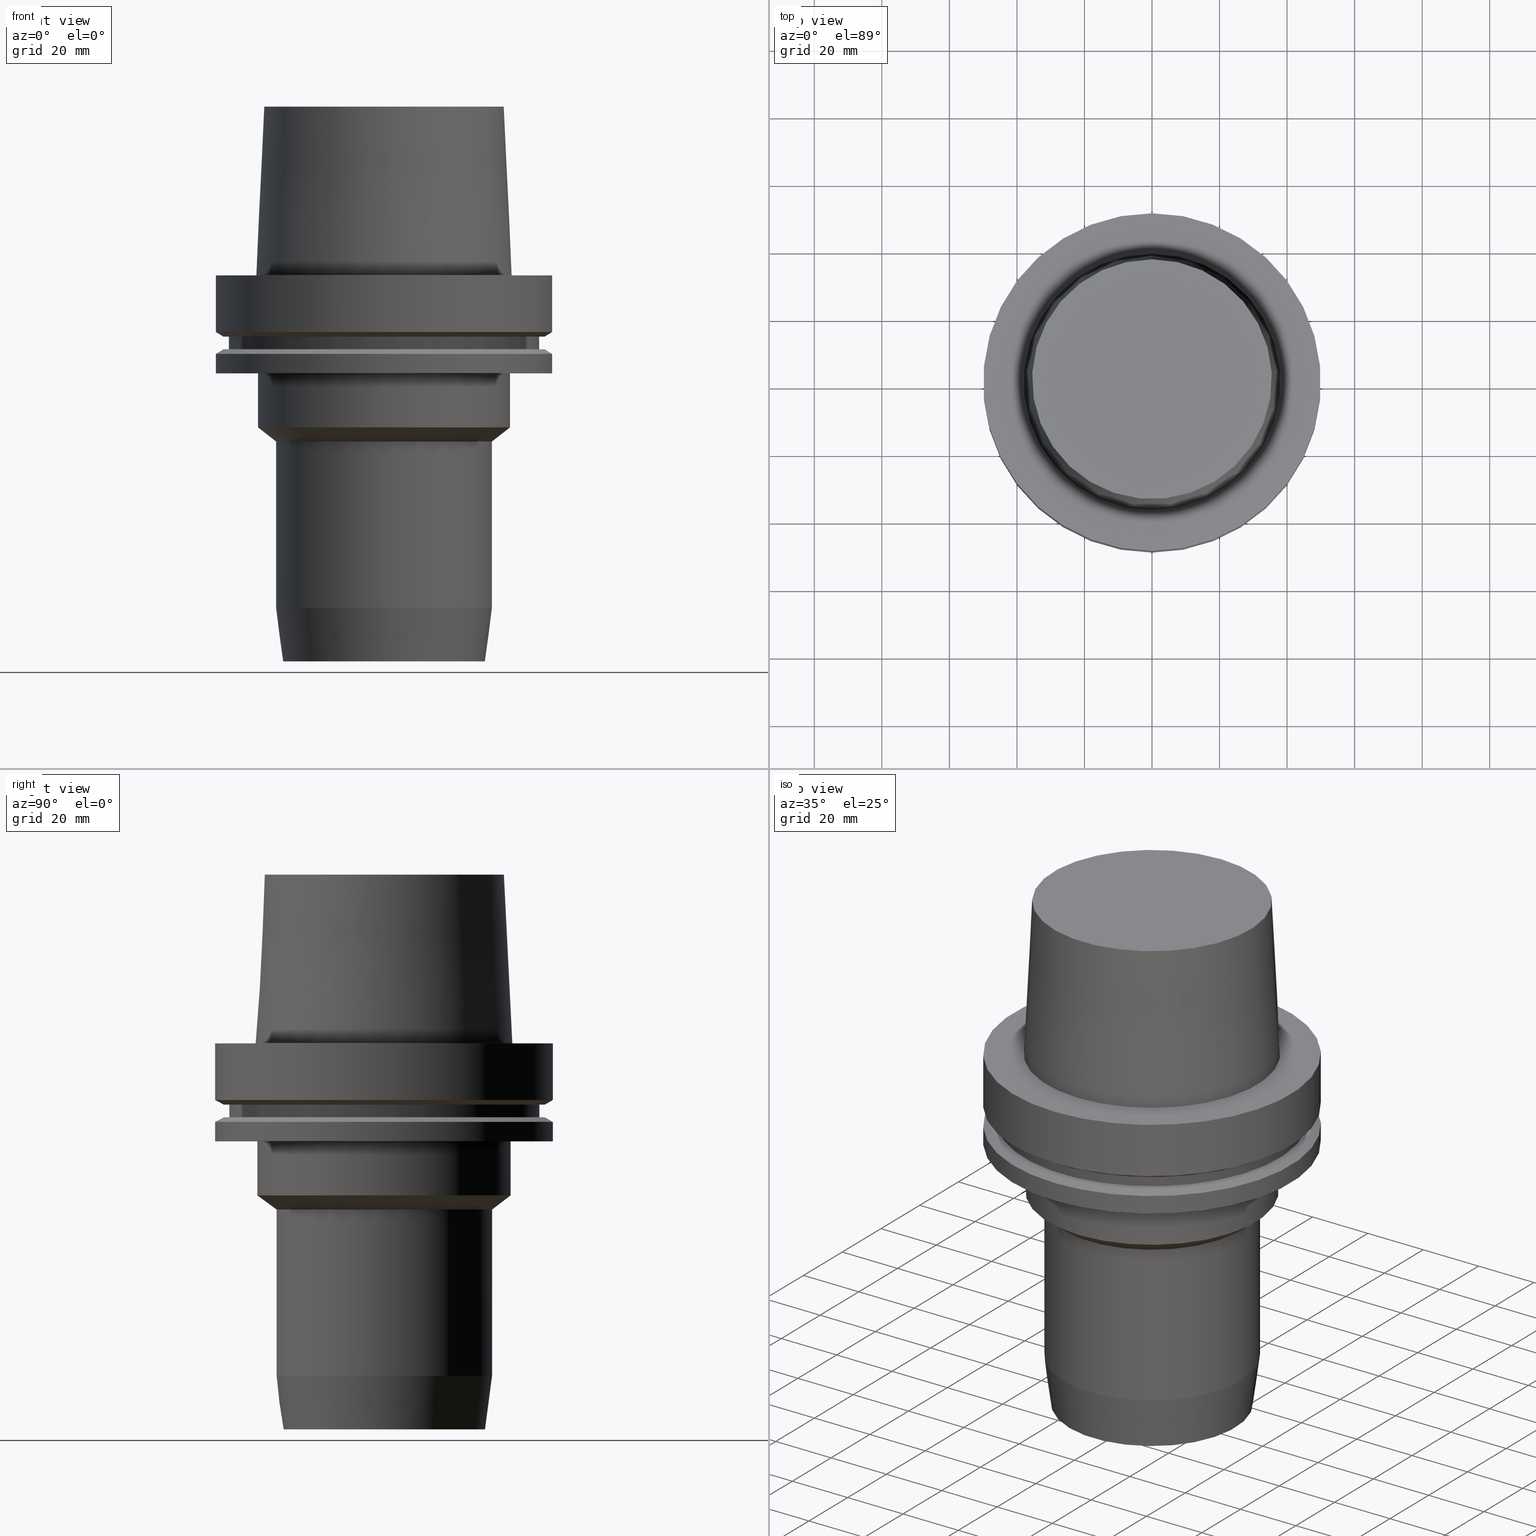
[diagram: canonical four-view strip — front | top / right | iso, engineering-drawing reading convention]
A machine part, canonical four-view strip (front | top / right | iso — engineering-drawing reading convention). The complete STEP part file that produces these views, byte-faithful:
ISO-10303-21;
HEADER;
FILE_DESCRIPTION((''),'1');
FILE_NAME('V:/90_\X2\53D65F9730C730FC30BF\X0\/00_\X2\6DE18DEF30C730FC30BF\X0\/ALL/HSK-BKUS\X2\52A05DE556F3\X0\_201801/HSK-A100-HDC/HSK-A100-HDC1.250-4.5.stp','2018-02-01T05:37:27',(''),(''),'Spatial Interop R21 SP3','Kubotek KeyCreator 2011 V10.0.2 (22737)',' ');
FILE_SCHEMA(('automotive_design'));
ENDSEC;
DATA;
#1=MECHANICAL_DESIGN_GEOMETRIC_PRESENTATION_REPRESENTATION(' ',(#10,#11,#12,#13,#14,#15,#16,#17,#18,#19,#20,#21,#22,#23,#24,#25,#26,#27,#28,#29,#30,#31,#32,#33,#34,#35,#36,#37,#38,#39,#40,#41),#6);
#2=PRODUCT_DEFINITION_CONTEXT('',#42,'design');
#3=APPLICATION_PROTOCOL_DEFINITION('INTERNATIONAL STANDARD','automotive_design',1994,#42);
#4=PRODUCT_CATEGORY_RELATIONSHIP('NONE','NONE',#43,#44);
#5=SHAPE_DEFINITION_REPRESENTATION(#45,#46);
#6= (GEOMETRIC_REPRESENTATION_CONTEXT(3)GLOBAL_UNCERTAINTY_ASSIGNED_CONTEXT((#49))GLOBAL_UNIT_ASSIGNED_CONTEXT((#51,#52,#53))REPRESENTATION_CONTEXT('NONE','WORKSPACE'));
#10=STYLED_ITEM('',(#55,#56),#57);
#11=STYLED_ITEM('',(#58,#59),#60);
#12=STYLED_ITEM('',(#61,#62),#63);
#13=STYLED_ITEM('',(#64,#65),#66);
#14=STYLED_ITEM('',(#67,#68),#69);
#15=STYLED_ITEM('',(#70),#71);
#16=STYLED_ITEM('',(#72,#73),#74);
#17=STYLED_ITEM('',(#75,#76),#77);
#18=STYLED_ITEM('',(#78),#79);
#19=STYLED_ITEM('',(#80),#81);
#20=STYLED_ITEM('',(#82),#83);
#21=STYLED_ITEM('',(#84,#85),#86);
#22=STYLED_ITEM('',(#87,#88),#89);
#23=STYLED_ITEM('',(#90,#91),#92);
#24=STYLED_ITEM('',(#93,#94),#95);
#25=STYLED_ITEM('',(#96,#97),#98);
#26=STYLED_ITEM('',(#99),#100);
#27=STYLED_ITEM('',(#101),#102);
#28=STYLED_ITEM('',(#103),#104);
#29=STYLED_ITEM('',(#105),#106);
#30=STYLED_ITEM('',(#107),#108);
#31=STYLED_ITEM('',(#109,#110),#111);
#32=STYLED_ITEM('',(#112),#113);
#33=STYLED_ITEM('',(#114),#115);
#34=STYLED_ITEM('',(#116,#117),#118);
#35=STYLED_ITEM('',(#119,#120),#121);
#36=STYLED_ITEM('',(#122,#123),#124);
#37=STYLED_ITEM('',(#125),#126);
#38=STYLED_ITEM('',(#127),#128);
#39=STYLED_ITEM('',(#129),#130);
#40=STYLED_ITEM('',(#131),#132);
#41=STYLED_ITEM('',(#133,#134),#135);
#42=APPLICATION_CONTEXT(' ');
#43=PRODUCT_CATEGORY('part','NONE');
#44=PRODUCT_RELATED_PRODUCT_CATEGORY('detail',' ',(#136));
#45=PRODUCT_DEFINITION_SHAPE('NONE','NONE',#137);
#46=ADVANCED_BREP_SHAPE_REPRESENTATION('Unnamed[1]',(#92,#138),#6);
#49=UNCERTAINTY_MEASURE_WITH_UNIT(LENGTH_MEASURE(1.0E-006),#51,'','');
#51= (CONVERSION_BASED_UNIT('MILLIMETRE',#141)LENGTH_UNIT()NAMED_UNIT(#144));
#52= (NAMED_UNIT(#146)PLANE_ANGLE_UNIT()SI_UNIT($,.RADIAN.));
#53= (NAMED_UNIT(#146)SOLID_ANGLE_UNIT()SI_UNIT($,.STERADIAN.));
#55=PRESENTATION_STYLE_ASSIGNMENT((#152));
#56=PRESENTATION_STYLE_ASSIGNMENT((#153));
#57=ADVANCED_FACE('Unnamed[1]',(#154,#155),#156,.T.);
#58=PRESENTATION_STYLE_ASSIGNMENT((#157));
#59=PRESENTATION_STYLE_ASSIGNMENT((#158));
#60=ADVANCED_FACE('Unnamed[1]',(#159,#160),#161,.T.);
#61=PRESENTATION_STYLE_ASSIGNMENT((#162));
#62=PRESENTATION_STYLE_ASSIGNMENT((#163));
#63=ADVANCED_FACE('Unnamed[1]',(#164),#165,.T.);
#64=PRESENTATION_STYLE_ASSIGNMENT((#166));
#65=PRESENTATION_STYLE_ASSIGNMENT((#167));
#66=ADVANCED_FACE('Unnamed[1]',(#168,#169),#170,.T.);
#67=PRESENTATION_STYLE_ASSIGNMENT((#171));
#68=PRESENTATION_STYLE_ASSIGNMENT((#172));
#69=ADVANCED_FACE('Unnamed[1]',(#173,#174),#175,.T.);
#70=PRESENTATION_STYLE_ASSIGNMENT((#176));
#71=EDGE_CURVE('Unnamed[1]',#177,#177,#178,.T.);
#72=PRESENTATION_STYLE_ASSIGNMENT((#179));
#73=PRESENTATION_STYLE_ASSIGNMENT((#180));
#74=ADVANCED_FACE('Unnamed[1]',(#181),#182,.T.);
#75=PRESENTATION_STYLE_ASSIGNMENT((#183));
#76=PRESENTATION_STYLE_ASSIGNMENT((#184));
#77=ADVANCED_FACE('Unnamed[1]',(#185,#186),#187,.T.);
#78=PRESENTATION_STYLE_ASSIGNMENT((#188));
#79=EDGE_CURVE('Unnamed[1]',#189,#189,#190,.T.);
#80=PRESENTATION_STYLE_ASSIGNMENT((#191));
#81=EDGE_CURVE('Unnamed[1]',#192,#192,#193,.T.);
#82=PRESENTATION_STYLE_ASSIGNMENT((#194));
#83=EDGE_CURVE('Unnamed[1]',#195,#195,#196,.T.);
#84=PRESENTATION_STYLE_ASSIGNMENT((#197));
#85=PRESENTATION_STYLE_ASSIGNMENT((#198));
#86=ADVANCED_FACE('Unnamed[1]',(#199,#200),#201,.T.);
#87=PRESENTATION_STYLE_ASSIGNMENT((#202));
#88=PRESENTATION_STYLE_ASSIGNMENT((#203));
#89=ADVANCED_FACE('Unnamed[1]',(#204,#205),#206,.T.);
#90=PRESENTATION_STYLE_ASSIGNMENT((#207));
#91=PRESENTATION_STYLE_ASSIGNMENT((#208));
#92=MANIFOLD_SOLID_BREP('Unnamed[1]',#209);
#93=PRESENTATION_STYLE_ASSIGNMENT((#210));
#94=PRESENTATION_STYLE_ASSIGNMENT((#211));
#95=ADVANCED_FACE('Unnamed[1]',(#212,#213),#214,.T.);
#96=PRESENTATION_STYLE_ASSIGNMENT((#215));
#97=PRESENTATION_STYLE_ASSIGNMENT((#216));
#98=ADVANCED_FACE('Unnamed[1]',(#217,#218),#219,.T.);
#99=PRESENTATION_STYLE_ASSIGNMENT((#220));
#100=EDGE_CURVE('Unnamed[1]',#221,#221,#222,.T.);
#101=PRESENTATION_STYLE_ASSIGNMENT((#223));
#102=EDGE_CURVE('Unnamed[1]',#224,#224,#225,.T.);
#103=PRESENTATION_STYLE_ASSIGNMENT((#226));
#104=EDGE_CURVE('Unnamed[1]',#227,#227,#228,.T.);
#105=PRESENTATION_STYLE_ASSIGNMENT((#229));
#106=EDGE_CURVE('Unnamed[1]',#230,#230,#231,.T.);
#107=PRESENTATION_STYLE_ASSIGNMENT((#232));
#108=EDGE_CURVE('Unnamed[1]',#233,#233,#234,.T.);
#109=PRESENTATION_STYLE_ASSIGNMENT((#235));
#110=PRESENTATION_STYLE_ASSIGNMENT((#236));
#111=ADVANCED_FACE('Unnamed[1]',(#237,#238),#239,.T.);
#112=PRESENTATION_STYLE_ASSIGNMENT((#240));
#113=EDGE_CURVE('Unnamed[1]',#241,#241,#242,.T.);
#114=PRESENTATION_STYLE_ASSIGNMENT((#243));
#115=EDGE_CURVE('Unnamed[1]',#244,#244,#245,.T.);
#116=PRESENTATION_STYLE_ASSIGNMENT((#246));
#117=PRESENTATION_STYLE_ASSIGNMENT((#247));
#118=ADVANCED_FACE('Unnamed[1]',(#248,#249),#250,.T.);
#119=PRESENTATION_STYLE_ASSIGNMENT((#251));
#120=PRESENTATION_STYLE_ASSIGNMENT((#252));
#121=ADVANCED_FACE('Unnamed[1]',(#253,#254),#255,.T.);
#122=PRESENTATION_STYLE_ASSIGNMENT((#256));
#123=PRESENTATION_STYLE_ASSIGNMENT((#257));
#124=ADVANCED_FACE('Unnamed[1]',(#258,#259),#260,.T.);
#125=PRESENTATION_STYLE_ASSIGNMENT((#261));
#126=EDGE_CURVE('Unnamed[1]',#262,#262,#263,.T.);
#127=PRESENTATION_STYLE_ASSIGNMENT((#264));
#128=EDGE_CURVE('Unnamed[1]',#265,#265,#266,.T.);
#129=PRESENTATION_STYLE_ASSIGNMENT((#267));
#130=EDGE_CURVE('Unnamed[1]',#268,#268,#269,.T.);
#131=PRESENTATION_STYLE_ASSIGNMENT((#270));
#132=EDGE_CURVE('Unnamed[1]',#271,#271,#272,.T.);
#133=PRESENTATION_STYLE_ASSIGNMENT((#273));
#134=PRESENTATION_STYLE_ASSIGNMENT((#274));
#135=ADVANCED_FACE('Unnamed[1]',(#275,#276),#277,.T.);
#136=PRODUCT('Unnamed[1]','Unnamed[1]','PART-Unnamed[1]-DESC',(#278));
#137=PRODUCT_DEFINITION('NONE','NONE',#279,#2);
#138=AXIS2_PLACEMENT_3D('',#280,#281,#282);
#141=LENGTH_MEASURE_WITH_UNIT(LENGTH_MEASURE(1.0),#283);
#144=DIMENSIONAL_EXPONENTS(1.0,0.0,0.0,0.0,0.0,0.0,0.0);
#146=DIMENSIONAL_EXPONENTS(0.0,0.0,0.0,0.0,0.0,0.0,0.0);
#152=SURFACE_STYLE_USAGE(.BOTH.,#284);
#153=CURVE_STYLE('',#285,POSITIVE_LENGTH_MEASURE(1000.0),#286);
#154=FACE_BOUND('',#287,.T.);
#155=FACE_BOUND('',#288,.T.);
#156=CYLINDRICAL_SURFACE('',#289,50.0);
#157=SURFACE_STYLE_USAGE(.BOTH.,#290);
#158=CURVE_STYLE('',#291,POSITIVE_LENGTH_MEASURE(1000.0),#292);
#159=FACE_BOUND('',#293,.T.);
#160=FACE_BOUND('',#294,.T.);
#161=CONICAL_SURFACE('',#295,36.7500000007484,0.0499583956894843);
#162=SURFACE_STYLE_USAGE(.BOTH.,#296);
#163=CURVE_STYLE('',#297,POSITIVE_LENGTH_MEASURE(1000.0),#298);
#164=FACE_OUTER_BOUND('',#299,.T.);
#165=PLANE('',#300);
#166=SURFACE_STYLE_USAGE(.BOTH.,#301);
#167=CURVE_STYLE('',#302,POSITIVE_LENGTH_MEASURE(1000.0),#303);
#168=FACE_BOUND('',#304,.T.);
#169=FACE_OUTER_BOUND('',#305,.T.);
#170=PLANE('',#306);
#171=SURFACE_STYLE_USAGE(.BOTH.,#307);
#172=CURVE_STYLE('',#308,POSITIVE_LENGTH_MEASURE(1000.0),#309);
#173=FACE_BOUND('',#310,.T.);
#174=FACE_BOUND('',#311,.T.);
#175=CYLINDRICAL_SURFACE('',#312,37.5);
#176=CURVE_STYLE('',#313,POSITIVE_LENGTH_MEASURE(1000.0),#314);
#177=VERTEX_POINT('',#315);
#178=CIRCLE('',#316,37.5000000000001);
#179=SURFACE_STYLE_USAGE(.BOTH.,#317);
#180=CURVE_STYLE('',#318,POSITIVE_LENGTH_MEASURE(1000.0),#319);
#181=FACE_OUTER_BOUND('',#320,.T.);
#182=PLANE('',#321);
#183=SURFACE_STYLE_USAGE(.BOTH.,#322);
#184=CURVE_STYLE('',#323,POSITIVE_LENGTH_MEASURE(1000.0),#324);
#185=FACE_OUTER_BOUND('',#325,.T.);
#186=FACE_BOUND('',#326,.T.);
#187=PLANE('',#327);
#188=CURVE_STYLE('',#328,POSITIVE_LENGTH_MEASURE(1000.0),#329);
#189=VERTEX_POINT('',#330);
#190=CIRCLE('',#331,37.5);
#191=CURVE_STYLE('',#332,POSITIVE_LENGTH_MEASURE(1000.0),#333);
#192=VERTEX_POINT('',#334);
#193=CIRCLE('',#335,50.0);
#194=CURVE_STYLE('',#336,POSITIVE_LENGTH_MEASURE(1000.0),#337);
#195=VERTEX_POINT('',#338);
#196=CIRCLE('',#339,31.9999999999999);
#197=SURFACE_STYLE_USAGE(.BOTH.,#340);
#198=CURVE_STYLE('',#341,POSITIVE_LENGTH_MEASURE(1000.0),#342);
#199=FACE_BOUND('',#343,.T.);
#200=FACE_BOUND('',#344,.T.);
#201=CONICAL_SURFACE('',#345,34.75,0.920088981962075);
#202=SURFACE_STYLE_USAGE(.BOTH.,#346);
#203=CURVE_STYLE('',#347,POSITIVE_LENGTH_MEASURE(1000.0),#348);
#204=FACE_BOUND('',#349,.T.);
#205=FACE_OUTER_BOUND('',#350,.T.);
#206=PLANE('',#351);
#207=SURFACE_STYLE_USAGE(.BOTH.,#352);
#208=CURVE_STYLE('',#353,POSITIVE_LENGTH_MEASURE(1000.0),#354);
#209=CLOSED_SHELL('',(#63,#60,#111,#124,#118,#66,#121,#77,#135,#57,#89,#69,#86,#95,#98,#74));
#210=SURFACE_STYLE_USAGE(.BOTH.,#355);
#211=CURVE_STYLE('',#356,POSITIVE_LENGTH_MEASURE(1000.0),#357);
#212=FACE_BOUND('',#358,.T.);
#213=FACE_BOUND('',#359,.T.);
#214=CYLINDRICAL_SURFACE('',#360,31.9999999999945);
#215=SURFACE_STYLE_USAGE(.BOTH.,#361);
#216=CURVE_STYLE('',#362,POSITIVE_LENGTH_MEASURE(1000.0),#363);
#217=FACE_BOUND('',#364,.T.);
#218=FACE_BOUND('',#365,.T.);
#219=CONICAL_SURFACE('',#366,30.9539216258389,0.130899693899573);
#220=CURVE_STYLE('',#367,POSITIVE_LENGTH_MEASURE(1000.0),#368);
#221=VERTEX_POINT('',#369);
#222=CIRCLE('',#370,47.62259526);
#223=CURVE_STYLE('',#371,POSITIVE_LENGTH_MEASURE(1000.0),#372);
#224=VERTEX_POINT('',#373);
#225=CIRCLE('',#374,50.0);
#226=CURVE_STYLE('',#375,POSITIVE_LENGTH_MEASURE(1000.0),#376);
#227=VERTEX_POINT('',#377);
#228=CIRCLE('',#378,47.62259526);
#229=CURVE_STYLE('',#379,POSITIVE_LENGTH_MEASURE(1000.0),#380);
#230=VERTEX_POINT('',#381);
#231=CIRCLE('',#382,50.0);
#232=CURVE_STYLE('',#383,POSITIVE_LENGTH_MEASURE(1000.0),#384);
#233=VERTEX_POINT('',#385);
#234=CIRCLE('',#386,31.9999999999891);
#235=SURFACE_STYLE_USAGE(.BOTH.,#387);
#236=CURVE_STYLE('',#388,POSITIVE_LENGTH_MEASURE(1000.0),#389);
#237=FACE_OUTER_BOUND('',#390,.T.);
#238=FACE_BOUND('',#391,.T.);
#239=PLANE('',#392);
#240=CURVE_STYLE('',#393,POSITIVE_LENGTH_MEASURE(1000.0),#394);
#241=VERTEX_POINT('',#395);
#242=CIRCLE('',#396,37.9999999999349);
#243=CURVE_STYLE('',#397,POSITIVE_LENGTH_MEASURE(1000.0),#398);
#244=VERTEX_POINT('',#399);
#245=CIRCLE('',#400,46.0);
#246=SURFACE_STYLE_USAGE(.BOTH.,#401);
#247=CURVE_STYLE('',#402,POSITIVE_LENGTH_MEASURE(1000.0),#403);
#248=FACE_BOUND('',#404,.T.);
#249=FACE_BOUND('',#405,.T.);
#250=CONICAL_SURFACE('',#406,48.81129763,1.04719755328238);
#251=SURFACE_STYLE_USAGE(.BOTH.,#407);
#252=CURVE_STYLE('',#408,POSITIVE_LENGTH_MEASURE(1000.0),#409);
#253=FACE_BOUND('',#410,.T.);
#254=FACE_BOUND('',#411,.T.);
#255=CYLINDRICAL_SURFACE('',#412,46.0);
#256=SURFACE_STYLE_USAGE(.BOTH.,#413);
#257=CURVE_STYLE('',#414,POSITIVE_LENGTH_MEASURE(1000.0),#415);
#258=FACE_BOUND('',#416,.T.);
#259=FACE_BOUND('',#417,.T.);
#260=CYLINDRICAL_SURFACE('',#418,50.0);
#261=CURVE_STYLE('',#419,POSITIVE_LENGTH_MEASURE(1000.0),#420);
#262=VERTEX_POINT('',#421);
#263=CIRCLE('',#422,50.0);
#264=CURVE_STYLE('',#423,POSITIVE_LENGTH_MEASURE(1000.0),#424);
#265=VERTEX_POINT('',#425);
#266=CIRCLE('',#426,35.5000000015618);
#267=CURVE_STYLE('',#427,POSITIVE_LENGTH_MEASURE(1000.0),#428);
#268=VERTEX_POINT('',#429);
#269=CIRCLE('',#430,46.0);
#270=CURVE_STYLE('',#431,POSITIVE_LENGTH_MEASURE(1000.0),#432);
#271=VERTEX_POINT('',#433);
#272=CIRCLE('',#434,29.9078432516888);
#273=SURFACE_STYLE_USAGE(.BOTH.,#435);
#274=CURVE_STYLE('',#436,POSITIVE_LENGTH_MEASURE(1000.0),#437);
#275=FACE_BOUND('',#438,.T.);
#276=FACE_BOUND('',#439,.T.);
#277=CONICAL_SURFACE('',#440,48.81129763,1.04719755328238);
#278=PRODUCT_CONTEXT('',#42,'mechanical');
#279=PRODUCT_DEFINITION_FORMATION_WITH_SPECIFIED_SOURCE(' ','NONE',#136,.NOT_KNOWN.);
#280=CARTESIAN_POINT('',(0.0,0.0,0.0));
#281=DIRECTION('',(0.0,0.0,1.0));
#282=DIRECTION('',(1.0,0.0,0.0));
#283= (NAMED_UNIT(#144)LENGTH_UNIT()SI_UNIT(.MILLI.,.METRE.));
#284=SURFACE_SIDE_STYLE('',(#442));
#285=DRAUGHTING_PRE_DEFINED_CURVE_FONT('continuous');
#286=COLOUR_RGB('',0.0,1.0,0.0);
#287=EDGE_LOOP('',(#443));
#288=EDGE_LOOP('',(#444));
#289=AXIS2_PLACEMENT_3D('',#445,#446,#447);
#290=SURFACE_SIDE_STYLE('',(#448));
#291=DRAUGHTING_PRE_DEFINED_CURVE_FONT('continuous');
#292=COLOUR_RGB('',0.0,1.0,0.0);
#293=EDGE_LOOP('',(#449));
#294=EDGE_LOOP('',(#450));
#295=AXIS2_PLACEMENT_3D('',#451,#452,#453);
#296=SURFACE_SIDE_STYLE('',(#454));
#297=DRAUGHTING_PRE_DEFINED_CURVE_FONT('continuous');
#298=COLOUR_RGB('',0.0,1.0,0.0);
#299=EDGE_LOOP('',(#455));
#300=AXIS2_PLACEMENT_3D('',#456,#457,#458);
#301=SURFACE_SIDE_STYLE('',(#459));
#302=DRAUGHTING_PRE_DEFINED_CURVE_FONT('continuous');
#303=COLOUR_RGB('',0.0,1.0,0.0);
#304=EDGE_LOOP('',(#460));
#305=EDGE_LOOP('',(#461));
#306=AXIS2_PLACEMENT_3D('',#462,#463,#464);
#307=SURFACE_SIDE_STYLE('',(#465));
#308=DRAUGHTING_PRE_DEFINED_CURVE_FONT('continuous');
#309=COLOUR_RGB('',0.0,1.0,0.0);
#310=EDGE_LOOP('',(#466));
#311=EDGE_LOOP('',(#467));
#312=AXIS2_PLACEMENT_3D('',#468,#469,#470);
#313=DRAUGHTING_PRE_DEFINED_CURVE_FONT('continuous');
#314=COLOUR_RGB('',0.0,1.0,0.0);
#315=CARTESIAN_POINT('',(2.75545529808154E-015,37.5000000000001,-45.0));
#316=AXIS2_PLACEMENT_3D('',#471,#472,#473);
#317=SURFACE_SIDE_STYLE('',(#474));
#318=DRAUGHTING_PRE_DEFINED_CURVE_FONT('continuous');
#319=COLOUR_RGB('',0.0,1.0,0.0);
#320=EDGE_LOOP('',(#475));
#321=AXIS2_PLACEMENT_3D('',#476,#477,#478);
#322=SURFACE_SIDE_STYLE('',(#479));
#323=DRAUGHTING_PRE_DEFINED_CURVE_FONT('continuous');
#324=COLOUR_RGB('',0.0,1.0,0.0);
#325=EDGE_LOOP('',(#480));
#326=EDGE_LOOP('',(#481));
#327=AXIS2_PLACEMENT_3D('',#482,#483,#484);
#328=DRAUGHTING_PRE_DEFINED_CURVE_FONT('continuous');
#329=COLOUR_RGB('',0.0,1.0,0.0);
#330=CARTESIAN_POINT('',(1.77573785876366E-015,37.5,-29.0));
#331=AXIS2_PLACEMENT_3D('',#485,#486,#487);
#332=DRAUGHTING_PRE_DEFINED_CURVE_FONT('continuous');
#333=COLOUR_RGB('',0.0,1.0,0.0);
#334=CARTESIAN_POINT('',(-1.81547968506605E-031,50.0,-9.76766004263236E-016));
#335=AXIS2_PLACEMENT_3D('',#488,#489,#490);
#336=DRAUGHTING_PRE_DEFINED_CURVE_FONT('continuous');
#337=COLOUR_RGB('',0.0,1.0,0.0);
#338=CARTESIAN_POINT('',(3.01185140537766E-015,31.9999999999999,-49.1872661974804));
#339=AXIS2_PLACEMENT_3D('',#491,#492,#493);
#340=SURFACE_SIDE_STYLE('',(#494));
#341=DRAUGHTING_PRE_DEFINED_CURVE_FONT('continuous');
#342=COLOUR_RGB('',0.0,1.0,0.0);
#343=EDGE_LOOP('',(#495));
#344=EDGE_LOOP('',(#496));
#345=AXIS2_PLACEMENT_3D('',#497,#498,#499);
#346=SURFACE_SIDE_STYLE('',(#500));
#347=DRAUGHTING_PRE_DEFINED_CURVE_FONT('continuous');
#348=COLOUR_RGB('',0.0,1.0,0.0);
#349=EDGE_LOOP('',(#501));
#350=EDGE_LOOP('',(#502));
#351=AXIS2_PLACEMENT_3D('',#503,#504,#505);
#352=SURFACE_SIDE_STYLE('',(#506));
#353=DRAUGHTING_PRE_DEFINED_CURVE_FONT('continuous');
#354=COLOUR_RGB('',0.0,1.0,0.0);
#355=SURFACE_SIDE_STYLE('',(#507));
#356=DRAUGHTING_PRE_DEFINED_CURVE_FONT('continuous');
#357=COLOUR_RGB('',0.0,1.0,0.0);
#358=EDGE_LOOP('',(#508));
#359=EDGE_LOOP('',(#509));
#360=AXIS2_PLACEMENT_3D('',#510,#511,#512);
#361=SURFACE_SIDE_STYLE('',(#513));
#362=DRAUGHTING_PRE_DEFINED_CURVE_FONT('continuous');
#363=COLOUR_RGB('',0.0,1.0,0.0);
#364=EDGE_LOOP('',(#514));
#365=EDGE_LOOP('',(#515));
#366=AXIS2_PLACEMENT_3D('',#516,#517,#518);
#367=DRAUGHTING_PRE_DEFINED_CURVE_FONT('continuous');
#368=COLOUR_RGB('',0.0,1.0,0.0);
#369=CARTESIAN_POINT('',(1.10983616172729E-015,47.62259526,-18.125));
#370=AXIS2_PLACEMENT_3D('',#519,#520,#521);
#371=DRAUGHTING_PRE_DEFINED_CURVE_FONT('continuous');
#372=COLOUR_RGB('',0.0,1.0,0.0);
#373=CARTESIAN_POINT('',(1.77573785876366E-015,50.0,-29.0));
#374=AXIS2_PLACEMENT_3D('',#522,#523,#524);
#375=DRAUGHTING_PRE_DEFINED_CURVE_FONT('continuous');
#376=COLOUR_RGB('',0.0,1.0,0.0);
#377=CARTESIAN_POINT('',(1.33945743656742E-015,47.62259526,-21.875));
#378=AXIS2_PLACEMENT_3D('',#525,#526,#527);
#379=DRAUGHTING_PRE_DEFINED_CURVE_FONT('continuous');
#380=COLOUR_RGB('',0.0,1.0,0.0);
#381=CARTESIAN_POINT('',(1.0257889421431E-015,50.0,-16.75240474));
#382=AXIS2_PLACEMENT_3D('',#528,#529,#530);
#383=DRAUGHTING_PRE_DEFINED_CURVE_FONT('continuous');
#384=COLOUR_RGB('',0.0,1.0,0.0);
#385=CARTESIAN_POINT('',(6.0257822230361E-015,31.9999999999891,-98.4084917746322));
#386=AXIS2_PLACEMENT_3D('',#531,#532,#533);
#387=SURFACE_SIDE_STYLE('',(#534));
#388=DRAUGHTING_PRE_DEFINED_CURVE_FONT('continuous');
#389=COLOUR_RGB('',0.0,1.0,0.0);
#390=EDGE_LOOP('',(#535));
#391=EDGE_LOOP('',(#536));
#392=AXIS2_PLACEMENT_3D('',#537,#538,#539);
#393=DRAUGHTING_PRE_DEFINED_CURVE_FONT('continuous');
#394=COLOUR_RGB('',0.0,1.0,0.0);
#395=CARTESIAN_POINT('',(-3.3636548776863E-032,37.9999999999349,-2.44634216324803E-015));
#396=AXIS2_PLACEMENT_3D('',#540,#541,#542);
#397=DRAUGHTING_PRE_DEFINED_CURVE_FONT('continuous');
#398=COLOUR_RGB('',0.0,1.0,0.0);
#399=CARTESIAN_POINT('',(1.33945743656742E-015,46.0,-21.875));
#400=AXIS2_PLACEMENT_3D('',#543,#544,#545);
#401=SURFACE_SIDE_STYLE('',(#546));
#402=DRAUGHTING_PRE_DEFINED_CURVE_FONT('continuous');
#403=COLOUR_RGB('',0.0,1.0,0.0);
#404=EDGE_LOOP('',(#547));
#405=EDGE_LOOP('',(#548));
#406=AXIS2_PLACEMENT_3D('',#549,#550,#551);
#407=SURFACE_SIDE_STYLE('',(#552));
#408=DRAUGHTING_PRE_DEFINED_CURVE_FONT('continuous');
#409=COLOUR_RGB('',0.0,1.0,0.0);
#410=EDGE_LOOP('',(#553));
#411=EDGE_LOOP('',(#554));
#412=AXIS2_PLACEMENT_3D('',#555,#556,#557);
#413=SURFACE_SIDE_STYLE('',(#558));
#414=DRAUGHTING_PRE_DEFINED_CURVE_FONT('continuous');
#415=COLOUR_RGB('',0.0,1.0,0.0);
#416=EDGE_LOOP('',(#559));
#417=EDGE_LOOP('',(#560));
#418=AXIS2_PLACEMENT_3D('',#561,#562,#563);
#419=DRAUGHTING_PRE_DEFINED_CURVE_FONT('continuous');
#420=COLOUR_RGB('',0.0,1.0,0.0);
#421=CARTESIAN_POINT('',(1.42350465615161E-015,50.0,-23.24759526));
#422=AXIS2_PLACEMENT_3D('',#564,#565,#566);
#423=DRAUGHTING_PRE_DEFINED_CURVE_FONT('continuous');
#424=COLOUR_RGB('',0.0,1.0,0.0);
#425=CARTESIAN_POINT('',(-3.06161699786838E-015,35.5000000015618,50.0));
#426=AXIS2_PLACEMENT_3D('',#567,#568,#569);
#427=DRAUGHTING_PRE_DEFINED_CURVE_FONT('continuous');
#428=COLOUR_RGB('',0.0,1.0,0.0);
#429=CARTESIAN_POINT('',(1.10983616172729E-015,46.0,-18.125));
#430=AXIS2_PLACEMENT_3D('',#570,#571,#572);
#431=DRAUGHTING_PRE_DEFINED_CURVE_FONT('continuous');
#432=COLOUR_RGB('',0.0,1.0,0.0);
#433=CARTESIAN_POINT('',(6.99885645712709E-015,29.9078432516888,-114.3));
#434=AXIS2_PLACEMENT_3D('',#573,#574,#575);
#435=SURFACE_SIDE_STYLE('',(#576));
#436=DRAUGHTING_PRE_DEFINED_CURVE_FONT('continuous');
#437=COLOUR_RGB('',0.0,1.0,0.0);
#438=EDGE_LOOP('',(#577));
#439=EDGE_LOOP('',(#578));
#440=AXIS2_PLACEMENT_3D('',#579,#580,#581);
#442=SURFACE_STYLE_FILL_AREA(#582);
#443=ORIENTED_EDGE('',*,*,#102,.F.);
#444=ORIENTED_EDGE('',*,*,#126,.T.);
#445=CARTESIAN_POINT('',(1.59962125745764E-015,3.19924251491527E-015,-26.12379763));
#446=DIRECTION('',(6.12323399573677E-017,1.22464679914735E-016,-1.0));
#447=DIRECTION('',(-1.23259516440783E-032,1.0,1.22464679914735E-016));
#448=SURFACE_STYLE_FILL_AREA(#583);
#449=ORIENTED_EDGE('',*,*,#113,.F.);
#450=ORIENTED_EDGE('',*,*,#128,.T.);
#451=CARTESIAN_POINT('',(-1.53080849893419E-015,-3.06161699786838E-015,25.0));
#452=DIRECTION('',(6.12323399573676E-017,1.22464679914735E-016,-1.0));
#453=DIRECTION('',(-1.23259516440783E-032,1.0,1.22464679914735E-016));
#454=SURFACE_STYLE_FILL_AREA(#584);
#455=ORIENTED_EDGE('',*,*,#128,.F.);
#456=CARTESIAN_POINT('',(-3.06161699786838E-015,17.7500000007809,50.0));
#457=DIRECTION('',(-6.12323399573677E-017,-1.22464679914735E-016,1.0));
#458=DIRECTION('',(1.23259516440783E-032,-1.0,-1.22464679914735E-016));
#459=SURFACE_STYLE_FILL_AREA(#585);
#460=ORIENTED_EDGE('',*,*,#130,.F.);
#461=ORIENTED_EDGE('',*,*,#100,.T.);
#462=CARTESIAN_POINT('',(1.10983616172729E-015,46.81129763,-18.125));
#463=DIRECTION('',(6.12323399573677E-017,1.22464679914735E-016,-1.0));
#464=DIRECTION('',(-1.23259516440783E-032,1.0,1.22464679914735E-016));
#465=SURFACE_STYLE_FILL_AREA(#586);
#466=ORIENTED_EDGE('',*,*,#71,.F.);
#467=ORIENTED_EDGE('',*,*,#79,.T.);
#468=CARTESIAN_POINT('',(2.2655965784226E-015,4.53119315684521E-015,-37.0));
#469=DIRECTION('',(6.12323399573676E-017,1.22464679914735E-016,-1.0));
#470=DIRECTION('',(-1.23259516440783E-032,1.0,1.22464679914735E-016));
#471=CARTESIAN_POINT('',(2.75545529808154E-015,5.51091059616309E-015,-45.0));
#472=DIRECTION('',(6.12323399573677E-017,1.22464679914735E-016,-1.0));
#473=DIRECTION('',(-1.23259516440783E-032,1.0,1.22464679914735E-016));
#474=SURFACE_STYLE_FILL_AREA(#587);
#475=ORIENTED_EDGE('',*,*,#132,.T.);
#476=CARTESIAN_POINT('',(6.99885645712711E-015,14.9539216258444,-114.3));
#477=DIRECTION('',(6.12323399573677E-017,1.34267985523743E-014,-1.0));
#478=DIRECTION('',(-8.26981446228847E-031,1.0,1.34267985523743E-014));
#479=SURFACE_STYLE_FILL_AREA(#588);
#480=ORIENTED_EDGE('',*,*,#104,.F.);
#481=ORIENTED_EDGE('',*,*,#115,.T.);
#482=CARTESIAN_POINT('',(1.33945743656742E-015,46.81129763,-21.875));
#483=DIRECTION('',(-6.12323399573677E-017,-1.22464679914735E-016,1.0));
#484=DIRECTION('',(1.23259516440783E-032,-1.0,-1.22464679914735E-016));
#485=CARTESIAN_POINT('',(1.77573785876366E-015,3.55147571752733E-015,-29.0));
#486=DIRECTION('',(6.12323399573676E-017,1.22464679914735E-016,-1.0));
#487=DIRECTION('',(-1.23259516440783E-032,1.0,1.22464679914735E-016));
#488=CARTESIAN_POINT('',(0.0,0.0,0.0));
#489=DIRECTION('',(6.12323399573677E-017,1.22464679914735E-016,-1.0));
#490=DIRECTION('',(-1.23259516440783E-032,1.0,1.22464679914735E-016));
#491=CARTESIAN_POINT('',(3.01185140537766E-015,6.02370281075532E-015,-49.1872661974804));
#492=DIRECTION('',(6.12323399573677E-017,1.22464679914735E-016,-1.0));
#493=DIRECTION('',(-1.23259516440783E-032,1.0,1.22464679914735E-016));
#494=SURFACE_STYLE_FILL_AREA(#589);
#495=ORIENTED_EDGE('',*,*,#83,.F.);
#496=ORIENTED_EDGE('',*,*,#71,.T.);
#497=CARTESIAN_POINT('',(2.8836533517296E-015,5.7673067034592E-015,-47.0936330987402));
#498=DIRECTION('',(-6.12323399573677E-017,-1.22464679914735E-016,1.0));
#499=DIRECTION('',(-1.23259516440783E-032,1.0,1.22464679914735E-016));
#500=SURFACE_STYLE_FILL_AREA(#590);
#501=ORIENTED_EDGE('',*,*,#79,.F.);
#502=ORIENTED_EDGE('',*,*,#102,.T.);
#503=CARTESIAN_POINT('',(1.77573785876366E-015,43.75,-29.0));
#504=DIRECTION('',(6.12323399573677E-017,1.22464679914735E-016,-1.0));
#505=DIRECTION('',(-1.23259516440783E-032,1.0,1.22464679914735E-016));
#506=SURFACE_STYLE_FILL_AREA(#591);
#507=SURFACE_STYLE_FILL_AREA(#592);
#508=ORIENTED_EDGE('',*,*,#108,.F.);
#509=ORIENTED_EDGE('',*,*,#83,.T.);
#510=CARTESIAN_POINT('',(4.51881681420688E-015,9.03763362841375E-015,-73.7978789860563));
#511=DIRECTION('',(6.12323399573677E-017,1.22464679914735E-016,-1.0));
#512=DIRECTION('',(-1.23259516440783E-032,1.0,1.22464679914735E-016));
#513=SURFACE_STYLE_FILL_AREA(#593);
#514=ORIENTED_EDGE('',*,*,#132,.F.);
#515=ORIENTED_EDGE('',*,*,#108,.T.);
#516=CARTESIAN_POINT('',(6.5123193400816E-015,1.30246386801632E-014,-106.354245887316));
#517=DIRECTION('',(-6.12323399573677E-017,-1.22464679914735E-016,1.0));
#518=DIRECTION('',(-1.23259516440783E-032,1.0,1.22464679914735E-016));
#519=CARTESIAN_POINT('',(1.10983616172729E-015,2.21967232345458E-015,-18.125));
#520=DIRECTION('',(6.12323399573676E-017,1.22464679914735E-016,-1.0));
#521=DIRECTION('',(-1.23259516440783E-032,1.0,1.22464679914735E-016));
#522=CARTESIAN_POINT('',(1.77573785876366E-015,3.55147571752733E-015,-29.0));
#523=DIRECTION('',(6.12323399573677E-017,1.22464679914735E-016,-1.0));
#524=DIRECTION('',(-1.23259516440783E-032,1.0,1.22464679914735E-016));
#525=CARTESIAN_POINT('',(1.33945743656742E-015,2.67891487313484E-015,-21.875));
#526=DIRECTION('',(6.12323399573676E-017,1.22464679914735E-016,-1.0));
#527=DIRECTION('',(-1.23259516440783E-032,1.0,1.22464679914735E-016));
#528=CARTESIAN_POINT('',(1.0257889421431E-015,2.05157788428619E-015,-16.75240474));
#529=DIRECTION('',(6.12323399573677E-017,1.22464679914735E-016,-1.0));
#530=DIRECTION('',(-1.23259516440783E-032,1.0,1.22464679914735E-016));
#531=CARTESIAN_POINT('',(6.0257822230361E-015,1.20515644460722E-014,-98.4084917746322));
#532=DIRECTION('',(6.12323399573677E-017,1.22464679914735E-016,-1.0));
#533=DIRECTION('',(-1.23259516440783E-032,1.0,1.22464679914735E-016));
#534=SURFACE_STYLE_FILL_AREA(#594);
#535=ORIENTED_EDGE('',*,*,#81,.F.);
#536=ORIENTED_EDGE('',*,*,#113,.T.);
#537=CARTESIAN_POINT('',(-1.07592258641734E-031,43.9999999999675,-1.71155408375563E-015));
#538=DIRECTION('',(-6.12323399573677E-017,-1.22464679914735E-016,1.0));
#539=DIRECTION('',(1.23259516440783E-032,-1.0,-1.22464679914735E-016));
#540=CARTESIAN_POINT('',(0.0,0.0,0.0));
#541=DIRECTION('',(6.12323399573677E-017,1.22464679914735E-016,-1.0));
#542=DIRECTION('',(-1.23259516440783E-032,1.0,1.22464679914735E-016));
#543=CARTESIAN_POINT('',(1.33945743656742E-015,2.67891487313484E-015,-21.875));
#544=DIRECTION('',(6.12323399573677E-017,1.22464679914735E-016,-1.0));
#545=DIRECTION('',(-1.23259516440783E-032,1.0,1.22464679914735E-016));
#546=SURFACE_STYLE_FILL_AREA(#595);
#547=ORIENTED_EDGE('',*,*,#100,.F.);
#548=ORIENTED_EDGE('',*,*,#106,.T.);
#549=CARTESIAN_POINT('',(1.06781255193519E-015,2.13562510387038E-015,-17.43870237));
#550=DIRECTION('',(-6.12323399573677E-017,-1.22464679914735E-016,1.0));
#551=DIRECTION('',(-1.23259516440783E-032,1.0,1.22464679914735E-016));
#552=SURFACE_STYLE_FILL_AREA(#596);
#553=ORIENTED_EDGE('',*,*,#115,.F.);
#554=ORIENTED_EDGE('',*,*,#130,.T.);
#555=CARTESIAN_POINT('',(1.22464679914735E-015,2.44929359829471E-015,-20.0));
#556=DIRECTION('',(6.12323399573677E-017,1.22464679914735E-016,-1.0));
#557=DIRECTION('',(-1.23259516440783E-032,1.0,1.22464679914735E-016));
#558=SURFACE_STYLE_FILL_AREA(#597);
#559=ORIENTED_EDGE('',*,*,#106,.F.);
#560=ORIENTED_EDGE('',*,*,#81,.T.);
#561=CARTESIAN_POINT('',(5.12894471071548E-016,1.0257889421431E-015,-8.37620236999999));
#562=DIRECTION('',(6.12323399573677E-017,1.22464679914735E-016,-1.0));
#563=DIRECTION('',(-1.23259516440783E-032,1.0,1.22464679914735E-016));
#564=CARTESIAN_POINT('',(1.42350465615161E-015,2.84700931230322E-015,-23.24759526));
#565=DIRECTION('',(6.12323399573677E-017,1.22464679914735E-016,-1.0));
#566=DIRECTION('',(-1.23259516440783E-032,1.0,1.22464679914735E-016));
#567=CARTESIAN_POINT('',(-3.06161699786838E-015,-6.12323399573676E-015,50.0));
#568=DIRECTION('',(6.12323399573677E-017,1.22464679914735E-016,-1.0));
#569=DIRECTION('',(-1.23259516440783E-032,1.0,1.22464679914735E-016));
#570=CARTESIAN_POINT('',(1.10983616172729E-015,2.21967232345458E-015,-18.125));
#571=DIRECTION('',(6.12323399573677E-017,1.22464679914735E-016,-1.0));
#572=DIRECTION('',(-1.23259516440783E-032,1.0,1.22464679914735E-016));
#573=CARTESIAN_POINT('',(6.99885645712709E-015,1.39977129142542E-014,-114.3));
#574=DIRECTION('',(6.12323399573677E-017,1.22464679914735E-016,-1.0));
#575=DIRECTION('',(-1.23259516440783E-032,1.0,1.22464679914735E-016));
#576=SURFACE_STYLE_FILL_AREA(#598);
#577=ORIENTED_EDGE('',*,*,#126,.F.);
#578=ORIENTED_EDGE('',*,*,#104,.T.);
#579=CARTESIAN_POINT('',(1.38148104635951E-015,2.76296209271903E-015,-22.56129763));
#580=DIRECTION('',(6.12323399573677E-017,1.22464679914735E-016,-1.0));
#581=DIRECTION('',(-1.23259516440783E-032,1.0,1.22464679914735E-016));
#582=FILL_AREA_STYLE('',(#599));
#583=FILL_AREA_STYLE('',(#600));
#584=FILL_AREA_STYLE('',(#601));
#585=FILL_AREA_STYLE('',(#602));
#586=FILL_AREA_STYLE('',(#603));
#587=FILL_AREA_STYLE('',(#604));
#588=FILL_AREA_STYLE('',(#605));
#589=FILL_AREA_STYLE('',(#606));
#590=FILL_AREA_STYLE('',(#607));
#591=FILL_AREA_STYLE('',(#608));
#592=FILL_AREA_STYLE('',(#609));
#593=FILL_AREA_STYLE('',(#610));
#594=FILL_AREA_STYLE('',(#611));
#595=FILL_AREA_STYLE('',(#612));
#596=FILL_AREA_STYLE('',(#613));
#597=FILL_AREA_STYLE('',(#614));
#598=FILL_AREA_STYLE('',(#615));
#599=FILL_AREA_STYLE_COLOUR('',#616);
#600=FILL_AREA_STYLE_COLOUR('',#617);
#601=FILL_AREA_STYLE_COLOUR('',#618);
#602=FILL_AREA_STYLE_COLOUR('',#619);
#603=FILL_AREA_STYLE_COLOUR('',#620);
#604=FILL_AREA_STYLE_COLOUR('',#621);
#605=FILL_AREA_STYLE_COLOUR('',#622);
#606=FILL_AREA_STYLE_COLOUR('',#623);
#607=FILL_AREA_STYLE_COLOUR('',#624);
#608=FILL_AREA_STYLE_COLOUR('',#625);
#609=FILL_AREA_STYLE_COLOUR('',#626);
#610=FILL_AREA_STYLE_COLOUR('',#627);
#611=FILL_AREA_STYLE_COLOUR('',#628);
#612=FILL_AREA_STYLE_COLOUR('',#629);
#613=FILL_AREA_STYLE_COLOUR('',#630);
#614=FILL_AREA_STYLE_COLOUR('',#631);
#615=FILL_AREA_STYLE_COLOUR('',#632);
#616=COLOUR_RGB('',0.0,1.0,0.0);
#617=COLOUR_RGB('',0.0,1.0,0.0);
#618=COLOUR_RGB('',0.0,1.0,0.0);
#619=COLOUR_RGB('',0.0,1.0,0.0);
#620=COLOUR_RGB('',0.0,1.0,0.0);
#621=COLOUR_RGB('',0.0,1.0,0.0);
#622=COLOUR_RGB('',0.0,1.0,0.0);
#623=COLOUR_RGB('',0.0,1.0,0.0);
#624=COLOUR_RGB('',0.0,1.0,0.0);
#625=COLOUR_RGB('',0.0,1.0,0.0);
#626=COLOUR_RGB('',0.0,1.0,0.0);
#627=COLOUR_RGB('',0.0,1.0,0.0);
#628=COLOUR_RGB('',0.0,1.0,0.0);
#629=COLOUR_RGB('',0.0,1.0,0.0);
#630=COLOUR_RGB('',0.0,1.0,0.0);
#631=COLOUR_RGB('',0.0,1.0,0.0);
#632=COLOUR_RGB('',0.0,1.0,0.0);
ENDSEC;
END-ISO-10303-21;
